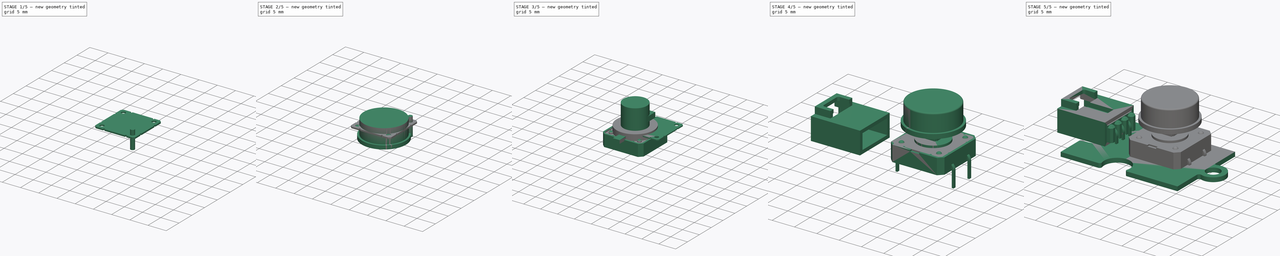
[diagram: build sequence overview — one tinted view per stage of 5, left to right]
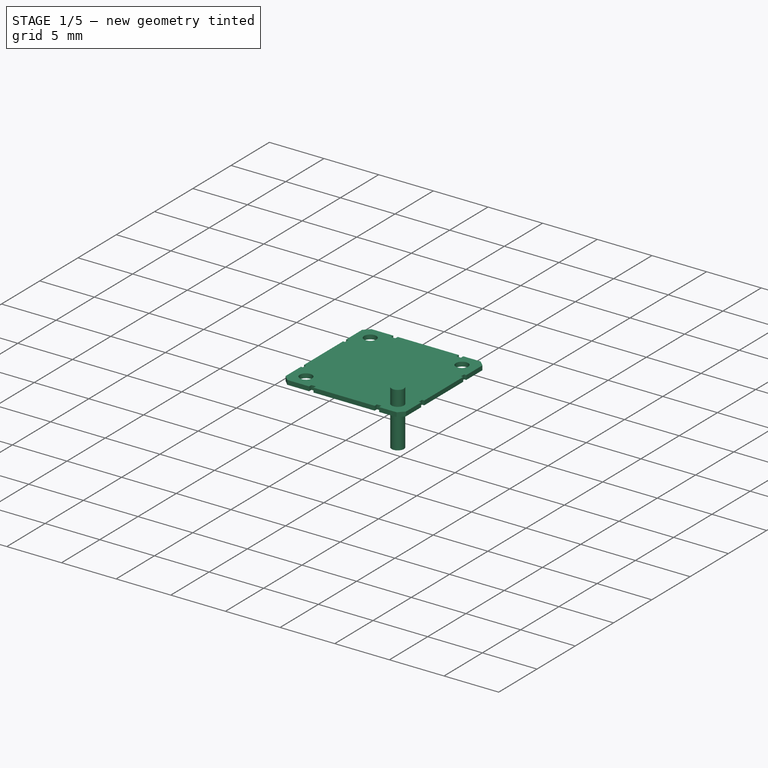
[diagram: stage 1 of 5 — iso view after this stage's code; geometry added in this stage tinted green]
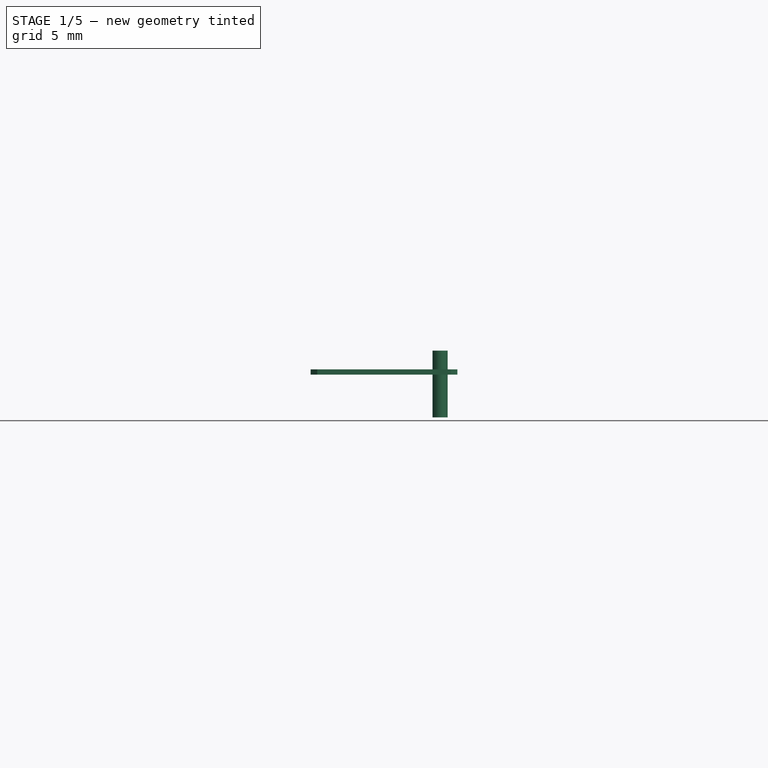
[diagram: stage 1 of 5 — front view after this stage's code; geometry added in this stage tinted green]
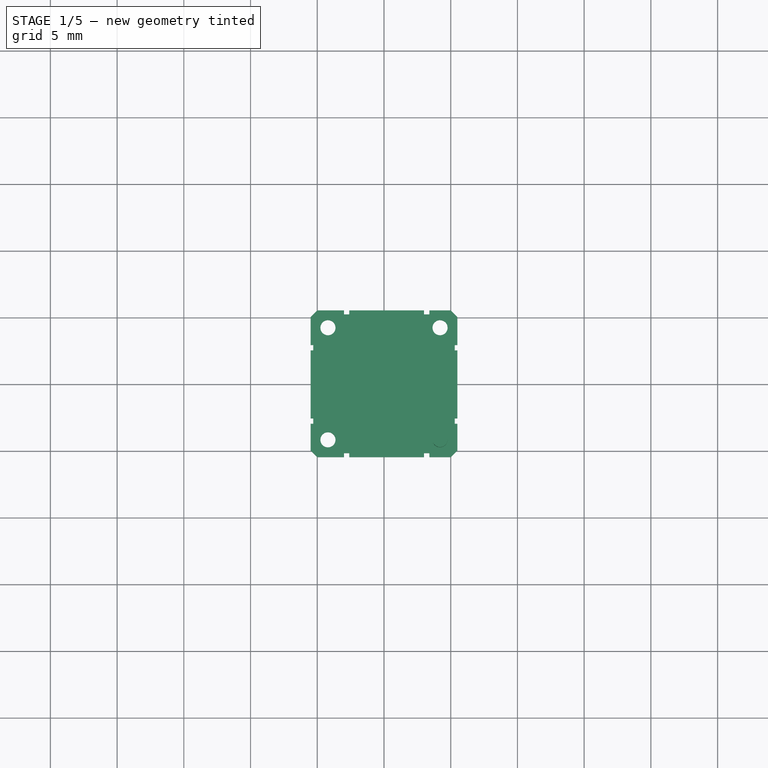
[diagram: stage 1 of 5 — top view after this stage's code; geometry added in this stage tinted green]
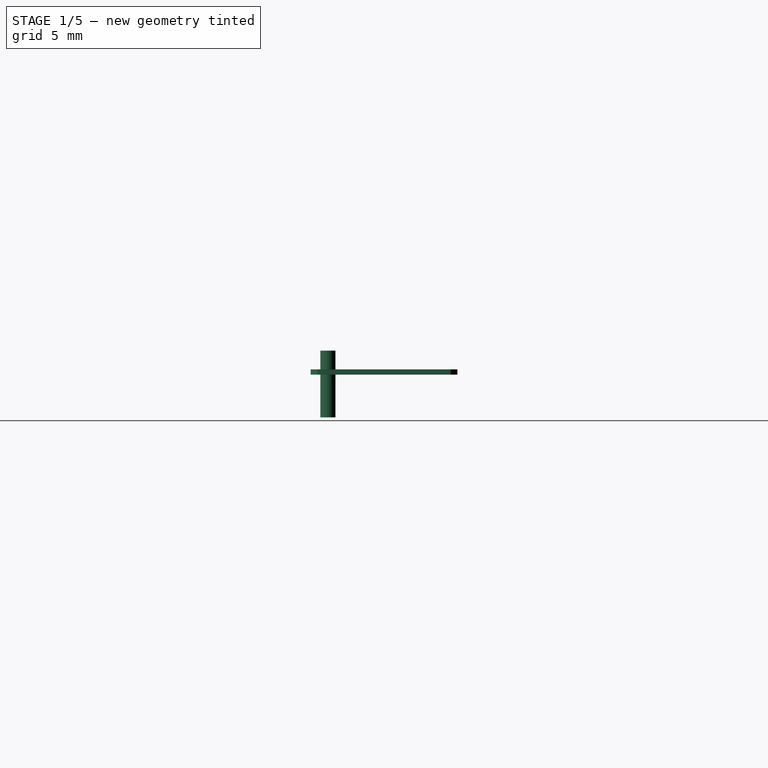
[diagram: stage 1 of 5 — right view after this stage's code; geometry added in this stage tinted green]
FCSTD DOCUMENT  (FreeCAD 0.14R3692 (Git))
Label: Optopus Pulsador
License: CC-BY 3.0
LicenseURL: http://creativecommons.org/licenses/by/3.0/
objects: Part::Cut×36, Part::Box×33, Part::Cylinder×18, Sketcher::SketchObject×12, Part::Fillet×8, Part::Chamfer×8, Part::MultiFuse×8, Part::Sweep×5, Part::Sphere×4, PartDesign::Pad×3, Part::FeaturePython×2, App::DocumentObjectGroup×2, Part::Thickness×1
note: 141 computed .brp shape members not serialized (recipe doc carries the construction recipe); baked Part::Feature solids carry a one-line shape summary decoded from their .brp

FEATURE [Part::Box] Box016  label="pestañaII"
  Height = 1
  Length = 0.4
  Placement = pos=(-3,-6.2,3) rot=(0,0,1;0rad)
  Width = 1
FEATURE [Part::Box] Box017  label="pestañaID"
  Height = 1
  Length = 0.4
  Placement = pos=(3,-6.2,3) rot=(0,0,1;0rad)
  Width = 1
FEATURE [Part::Box] Box018  label="pestañaIS"
  Height = 1
  Length = 0.4
  Placement = pos=(-5.3,2.5,3) rot=(0,0,1;1.5708rad)
  Width = 1
FEATURE [Part::Box] Box019  label="pestañaIInf"
  Height = 1
  Length = 0.4
  Placement = pos=(-5.3,-3,3) rot=(0,0,1;1.5708rad)
  Width = 1
FEATURE [Part::Cylinder] Cylinder005  label="Cilindro005"
  Angle = 360
  Height = 5
  Placement = pos=(4.2,-4.2,0) rot=(0,0,1;0rad)
  Radius = 0.565
FEATURE [Part::Cylinder] Cylinder006  label="Cilindro004"
  Angle = 360
  Height = 5
  Placement = pos=(-4.2,-4.2,0) rot=(0,0,1;0rad)
  Radius = 0.565
FEATURE [Part::Cylinder] Cylinder009  label="Cilindro002"
  Angle = 360
  Height = 5
  Placement = pos=(-4.2,4.2,0) rot=(0,0,1;0rad)
  Radius = 0.565
FEATURE [Part::Box] Box024  label="pestañaDInf"
  Height = 1
  Length = 0.4
  Placement = pos=(6.3,-3,3) rot=(0,0,1;1.5708rad)
  Width = 1
FEATURE [Part::Box] Box025  label="pestañaSI"
  Height = 1
  Length = 0.4
  Placement = pos=(-3,5.2,3) rot=(0,0,1;0rad)
  Width = 1
FEATURE [Part::Cylinder] Cylinder013  label="Cilindro003"
  Angle = 360
  Height = 5
  Placement = pos=(4.2,4.2,0) rot=(0,0,1;0rad)
  Radius = 0.565
FEATURE [Sketcher::SketchObject] Sketch011
  Placement = pos=(0.3,-2,0) rot=(0,0.707107,0.707107;3.14159rad)
  sketch-geometry (5):
    g0: LineSegment StartX=-1.9 StartY=4.62141 StartZ=0 EndX=-1.9 EndY=-1.87859 EndZ=0
    g1: LineSegment StartX=-1.9 StartY=-1.87859 StartZ=0 EndX=-1.1 EndY=-1.07859 EndZ=0
    g2: LineSegment StartX=-1.1 StartY=-1.07859 StartZ=0 EndX=-1.5 EndY=-1.07859 EndZ=0
    g3: LineSegment StartX=-1.5 StartY=-1.07859 StartZ=0 EndX=-1.5 EndY=4.62141 EndZ=0
    g4: LineSegment StartX=-1.5 StartY=4.62141 StartZ=0 EndX=-1.9 EndY=4.62141 EndZ=0
  constraints (15):
    c: Coincident(g0,g1)
    c: Coincident(g1,g2)
    c: Coincident(g2,g3)
    c: Coincident(g3,g4)
    c: Coincident(g4,g0)
    c: Vertical(g3)
    c: DistanceX(g0,g3) = 0.4
    c: Vertical(g0)
    c: Angle(g1,g0) = 0.785398
    c: DistanceY(g0) = -6.5
    c: Horizontal(g4)
    c: DistanceY(g3) = 5.7
    c: DistanceX(g-1,g3) = -1.5
    c: DistanceY(g-1,g3) = 4.62141
    c: Horizontal(g2)
FEATURE [Part::Box] Box028  label="pestañaSD"
  Height = 1
  Length = 0.4
  Placement = pos=(3,5.2,3) rot=(0,0,1;0rad)
  Width = 1
FEATURE [Part::Box] Box029  label="pestañaDS"
  Height = 1
  Length = 0.4
  Placement = pos=(6.3,2.5,3) rot=(0,0,1;1.5708rad)
  Width = 1
FEATURE [Part::Box] Box031  label="Cubo018"
  Height = 0.4
  Length = 11
  Placement = pos=(-5.5,-5.5,3.6) rot=(0,0,1;0rad)
  Width = 11
FEATURE [Part::Chamfer] Chamfer006
  Base = -> Box031
  Edges = 4 edges r=0.5: [Edge1,Edge3,Edge5,Edge7]
  Placement = pos=(0,0,-0.4) rot=(0,0,1;0rad)
FEATURE [Part::Cut] Cut018
  Base = -> Chamfer006
  Tool = -> Box025
FEATURE [Part::Cut] Cut033
  Base = -> Cut018
  Tool = -> Box028
FEATURE [Part::Cut] Cut022
  Base = -> Cut033
  Tool = -> Box016
FEATURE [Part::Cut] Cut029
  Base = -> Cut022
  Tool = -> Box017
FEATURE [Part::Cut] Cut017
  Base = -> Cut029
  Tool = -> Box018
FEATURE [Part::Cut] Cut009
  Base = -> Cut017
  Tool = -> Box019
FEATURE [Part::Cut] Cut010
  Base = -> Cut009
  Tool = -> Box029
FEATURE [Part::Cut] Cut030
  Base = -> Cut010
  Tool = -> Box024
FEATURE [Part::Cut] Cut013
  Base = -> Cut030
  Tool = -> Cylinder009
FEATURE [Part::Cut] Cut012
  Base = -> Cut013
  Tool = -> Cylinder013
FEATURE [Part::Cut] Cut015
  Base = -> Cut012
  Tool = -> Cylinder006
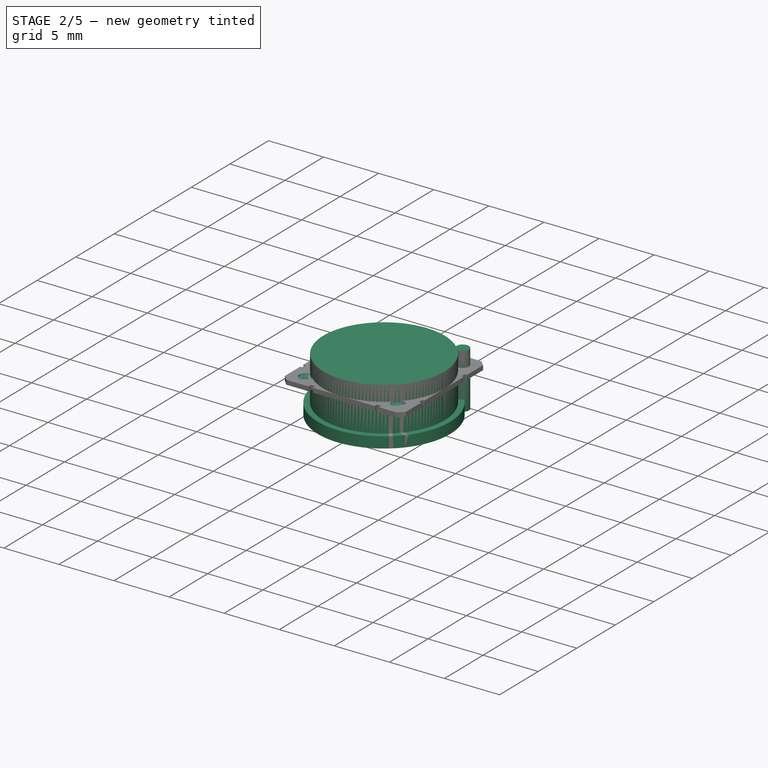
[diagram: stage 2 of 5 — iso view after this stage's code; geometry added in this stage tinted green]
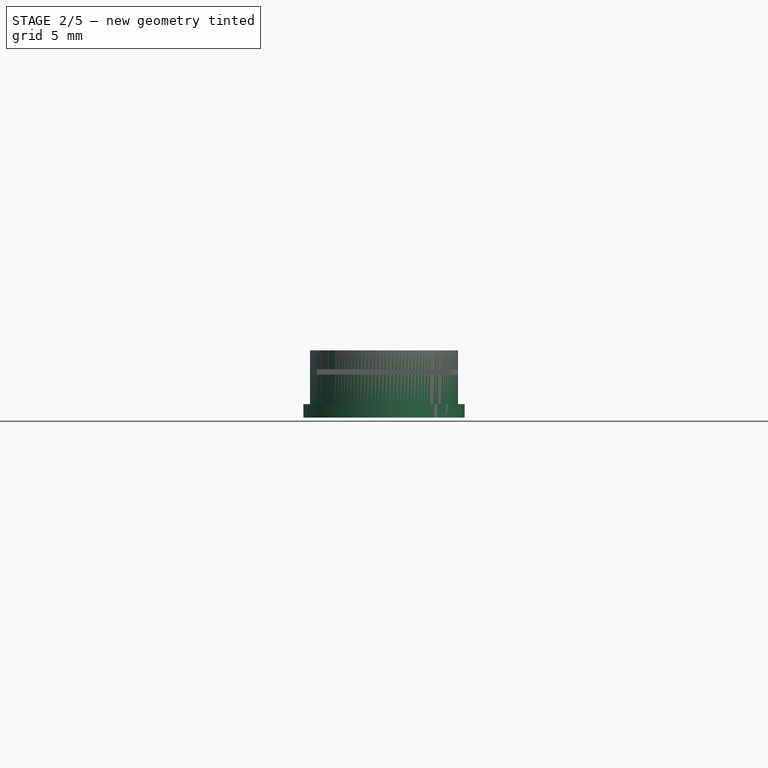
[diagram: stage 2 of 5 — front view after this stage's code; geometry added in this stage tinted green]
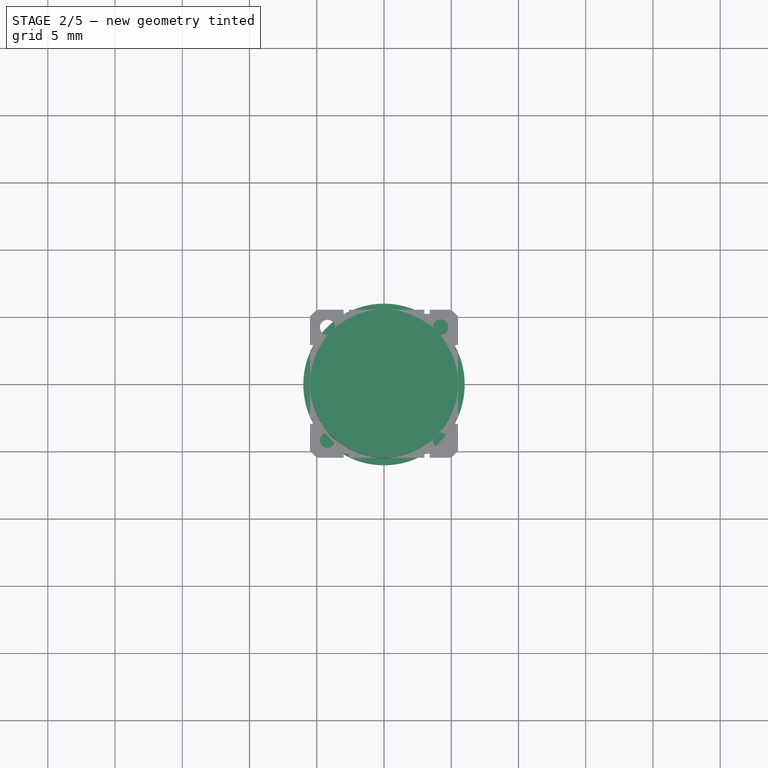
[diagram: stage 2 of 5 — top view after this stage's code; geometry added in this stage tinted green]
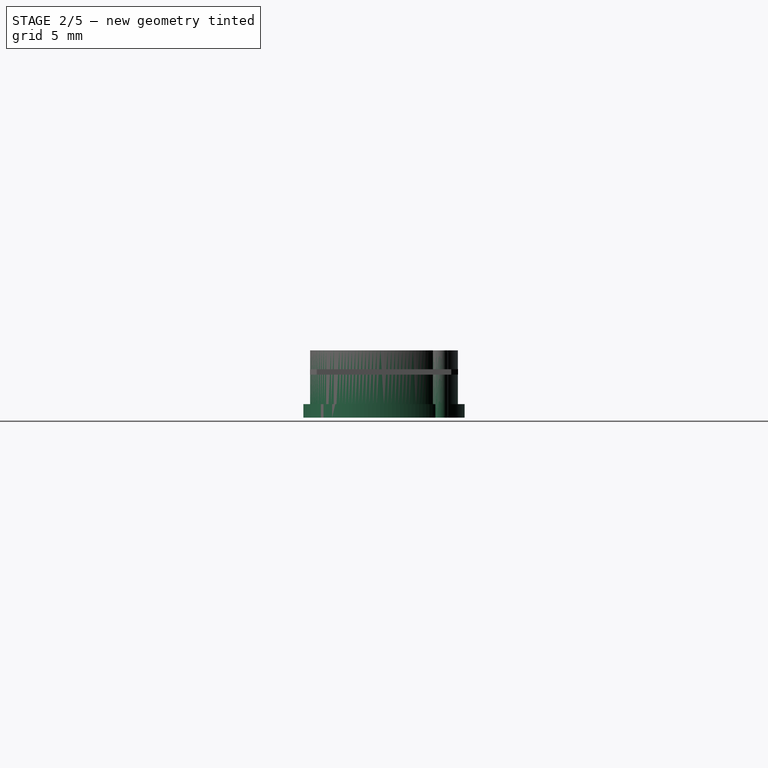
[diagram: stage 2 of 5 — right view after this stage's code; geometry added in this stage tinted green]
FEATURE [Sketcher::SketchObject] Sketch004
  Placement = pos=(0,0,0) rot=(0.57735,0.57735,0.57735;2.0944rad)
  sketch-geometry (3):
    g0: LineSegment StartX=0 StartY=0 StartZ=0 EndX=0 EndY=3.48702 EndZ=0
    g1: LineSegment StartX=-1.51298 StartY=5 StartZ=0 EndX=-2 EndY=5 EndZ=0
    g2: ArcOfCircle CenterX=-1.51298 CenterY=3.48702 CenterZ=0 NormalX=0 NormalY=0 NormalZ=1 Radius=1.51298 StartAngle=0 EndAngle=1.5708
  constraints (8):
    c: Coincident(g0,g-1)
    c: Vertical(g0)
    c: Horizontal(g1)
    c: Tangent(g1,g2)
    c: Tangent(g0,g2)
    c: DistanceY(g-1,g1) = 5
    c: DistanceX(g-1,g1) = -2
    c: Radius(g2) = 1.51298
FEATURE [Sketcher::SketchObject] Sketch005
  Placement = pos=(0,0,0) rot=(0.57735,0.57735,0.57735;2.0944rad)
  sketch-geometry (3):
    g0: LineSegment StartX=0 StartY=0 StartZ=0 EndX=0 EndY=3.48702 EndZ=0
    g1: LineSegment StartX=-1.51298 StartY=5 StartZ=0 EndX=-2 EndY=5 EndZ=0
    g2: ArcOfCircle CenterX=-1.51298 CenterY=3.48702 CenterZ=0 NormalX=0 NormalY=0 NormalZ=1 Radius=1.51298 StartAngle=0 EndAngle=1.5708
  constraints (8):
    c: Coincident(g0,g-1)
    c: Vertical(g0)
    c: Horizontal(g1)
    c: Tangent(g1,g2)
    c: Tangent(g0,g2)
    c: DistanceY(g-1,g1) = 5
    c: DistanceX(g-1,g1) = -2
    c: Radius(g2) = 1.51298
FEATURE [Sketcher::SketchObject] Sketch006
  Placement = pos=(0,0,0) rot=(0.57735,0.57735,0.57735;2.0944rad)
  sketch-geometry (3):
    g0: LineSegment StartX=0 StartY=0 StartZ=0 EndX=0 EndY=3.48702 EndZ=0
    g1: LineSegment StartX=-1.51298 StartY=5 StartZ=0 EndX=-2 EndY=5 EndZ=0
    g2: ArcOfCircle CenterX=-1.51298 CenterY=3.48702 CenterZ=0 NormalX=0 NormalY=0 NormalZ=1 Radius=1.51298 StartAngle=0 EndAngle=1.5708
  constraints (8):
    c: Coincident(g0,g-1)
    c: Vertical(g0)
    c: Horizontal(g1)
    c: Tangent(g1,g2)
    c: Tangent(g0,g2)
    c: DistanceY(g-1,g1) = 5
    c: DistanceX(g-1,g1) = -2
    c: Radius(g2) = 1.51298
FEATURE [Part::Box] Box008  label="pestañaSD001"
  Height = 1
  Length = 0.4
  Placement = pos=(3,5.2,3) rot=(0,0,1;0rad)
  Width = 1
FEATURE [Part::Box] Box009  label="pestañaIInf001"
  Height = 1
  Length = 0.4
  Placement = pos=(-5.3,-3,3) rot=(0,0,1;1.5708rad)
  Width = 1
FEATURE [Part::Box] Box010  label="pestañaII001"
  Height = 1
  Length = 0.4
  Placement = pos=(-3,-6.2,3) rot=(0,0,1;0rad)
  Width = 1
FEATURE [Part::Box] Box011  label="pestañaDInf001"
  Height = 1
  Length = 0.4
  Placement = pos=(6.3,-3,3) rot=(0,0,1;1.5708rad)
  Width = 1
FEATURE [Part::Box] Box012  label="pestañaID001"
  Height = 1
  Length = 0.4
  Placement = pos=(3,-6.2,3) rot=(0,0,1;0rad)
  Width = 1
FEATURE [Sketcher::SketchObject] Sketch007
  Placement = pos=(0,2,0) rot=(1,0,0;1.5708rad)
  sketch-geometry (5):
    g0: LineSegment StartX=-2.2 StartY=4.62141 StartZ=0 EndX=-2.2 EndY=-1.87859 EndZ=0
    g1: LineSegment StartX=-2.2 StartY=-1.87859 StartZ=0 EndX=-1.4 EndY=-1.07859 EndZ=0
    g2: LineSegment StartX=-1.4 StartY=-1.07859 StartZ=0 EndX=-1.8 EndY=-1.07859 EndZ=0
    g3: LineSegment StartX=-1.8 StartY=-1.07859 StartZ=0 EndX=-1.8 EndY=4.62141 EndZ=0
    g4: LineSegment StartX=-1.8 StartY=4.62141 StartZ=0 EndX=-2.2 EndY=4.62141 EndZ=0
  constraints (15):
    c: Coincident(g0,g1)
    c: Coincident(g1,g2)
    c: Coincident(g2,g3)
    c: Coincident(g3,g4)
    c: Coincident(g4,g0)
    c: Vertical(g3)
    c: DistanceX(g0,g3) = 0.4
    c: Vertical(g0)
    c: Angle(g1,g0) = 0.785398
    c: DistanceY(g0) = -6.5
    c: Horizontal(g4)
    c: DistanceY(g3) = 5.7
    c: DistanceX(g-1,g3) = -1.8
    c: DistanceY(g-1,g3) = 4.62141
    c: Horizontal(g2)
FEATURE [Part::Box] Box015  label="pestañaDS001"
  Height = 1
  Length = 0.4
  Placement = pos=(6.3,2.5,3) rot=(0,0,1;1.5708rad)
  Width = 1
FEATURE [Part::Cylinder] Cylinder002  label="Cilindro017"
  Angle = 360
  Height = 1
  Radius = 6
FEATURE [Part::Box] Box021  label="Cubo003"
  Height = 0.3
  Length = 11
  Placement = pos=(-5.5,-5.5,3.6) rot=(0,0,1;0rad)
  Width = 11
FEATURE [Part::Chamfer] Chamfer005
  Base = -> Box021
  Edges = 4 edges r=0.5: [Edge1,Edge3,Edge5,Edge7]
  Placement = pos=(0,0,-0.4) rot=(0,0,1;0rad)
FEATURE [Part::Cylinder] Cylinder010  label="Cilindro016"
  Angle = 360
  Height = 4
  Placement = pos=(0,0,1) rot=(0,0,1;0rad)
  Radius = 5.5
FEATURE [Part::Cylinder] Cylinder011  label="Cilindro007"
  Angle = 360
  Height = 5
  Placement = pos=(-4.2,4.2,0) rot=(0,0,1;0rad)
  Radius = 0.565
FEATURE [Part::Cylinder] Cylinder012  label="Cilindro006"
  Angle = 360
  Height = 5
  Placement = pos=(4.2,4.2,0) rot=(0,0,1;0rad)
  Radius = 0.565
FEATURE [Part::Box] Box026  label="pestañaSI001"
  Height = 1
  Length = 0.4
  Placement = pos=(-3,5.2,3) rot=(0,0,1;0rad)
  Width = 1
FEATURE [Part::Cut] Cut006
  Base = -> Chamfer005
  Tool = -> Box026
FEATURE [Part::Cut] Cut023
  Base = -> Cut006
  Tool = -> Box008
FEATURE [Part::Cut] Cut027
  Base = -> Cut023
  Tool = -> Box010
FEATURE [Part::Cut] Cut024
  Base = -> Cut027
  Tool = -> Box012
FEATURE [Part::Box] Box030  label="pestañaIS001"
  Height = 1
  Length = 0.4
  Placement = pos=(-5.3,2.5,3) rot=(0,0,1;1.5708rad)
  Width = 1
FEATURE [Part::Cut] Cut020
  Base = -> Cut024
  Tool = -> Box030
FEATURE [Part::Cut] Cut032
  Base = -> Cut020
  Tool = -> Box009
FEATURE [Part::Cut] Cut019
  Base = -> Cut032
  Tool = -> Box015
FEATURE [Part::Cut] Cut031
  Base = -> Cut019
  Tool = -> Box011
FEATURE [Part::Cut] Cut016
  Base = -> Cut031
  Tool = -> Cylinder011
FEATURE [Part::MultiFuse] Fusion007
  Shapes = -> [Cylinder010,Cylinder002]
FEATURE [Part::Cut] Cut035  label="ChapaDiferencia"
  Base = -> Cut015
  Tool = -> Cylinder005
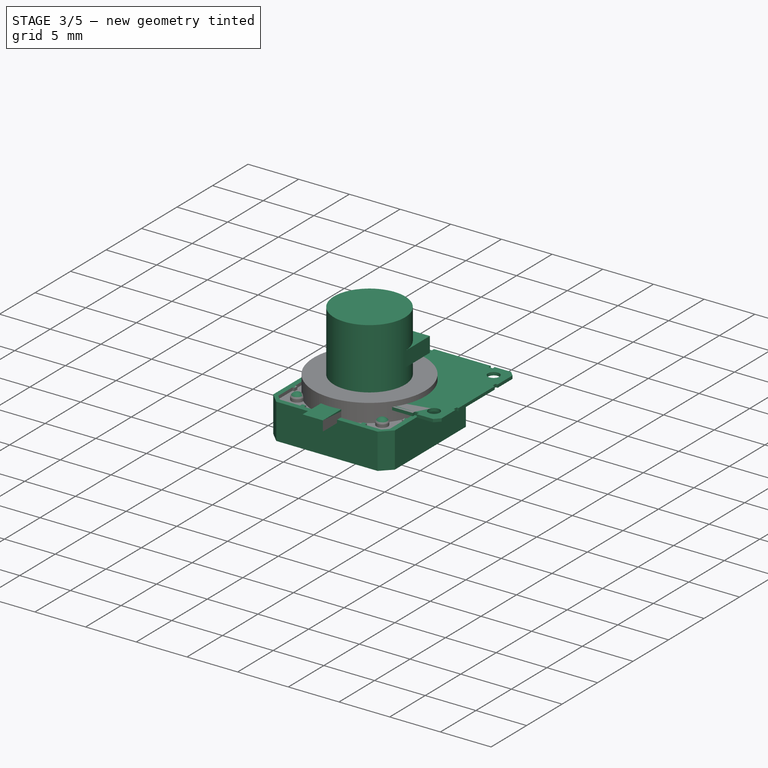
[diagram: stage 3 of 5 — iso view after this stage's code; geometry added in this stage tinted green]
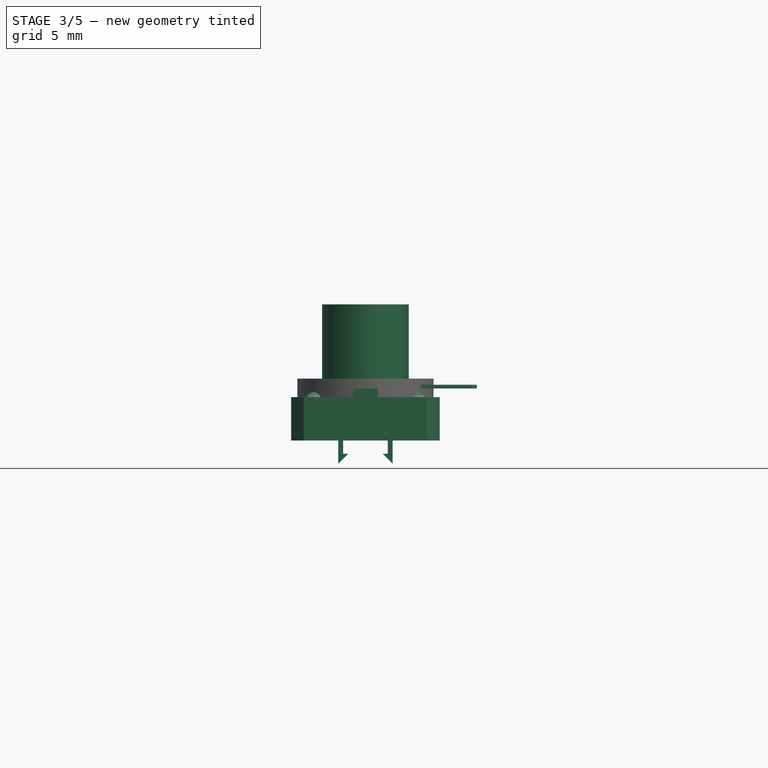
[diagram: stage 3 of 5 — front view after this stage's code; geometry added in this stage tinted green]
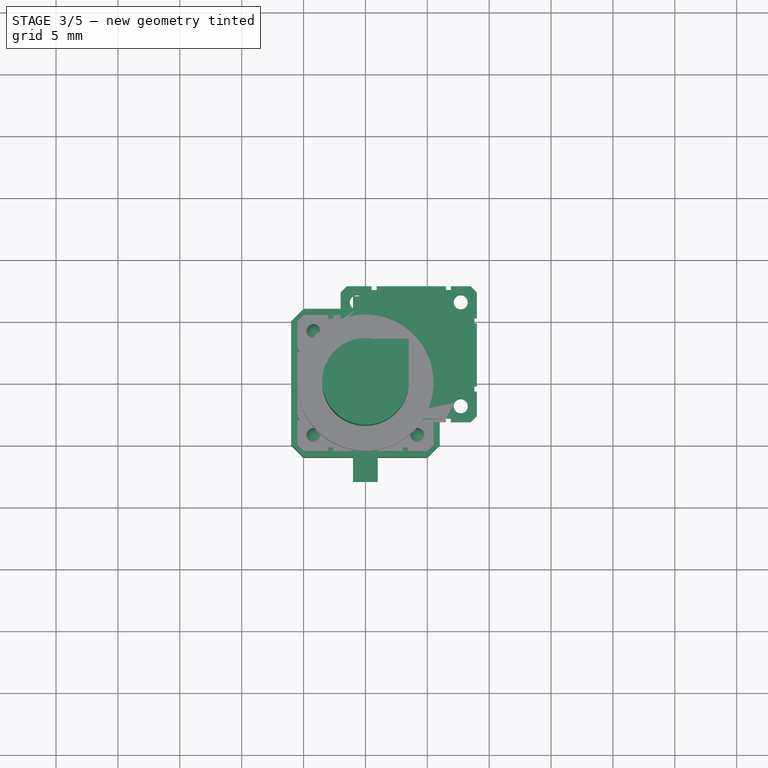
[diagram: stage 3 of 5 — top view after this stage's code; geometry added in this stage tinted green]
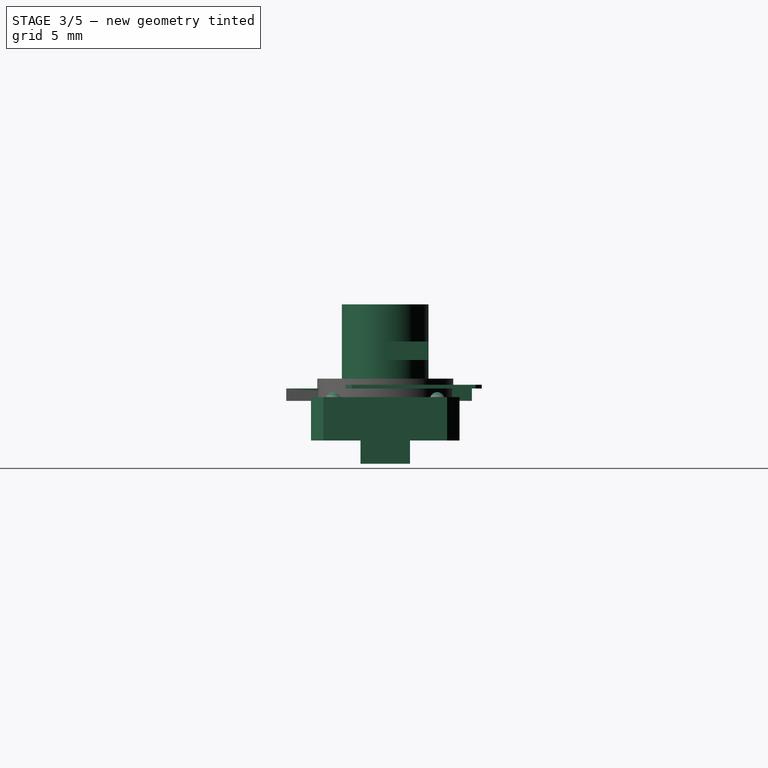
[diagram: stage 3 of 5 — right view after this stage's code; geometry added in this stage tinted green]
FEATURE [Part::Cylinder] Cylinder  label="Cilindro010"
  Angle = 360
  Height = 0.2
  Radius = 0.6
FEATURE [Part::Sphere] Sphere  label="Esféra003"
  Angle1 = -90
  Angle2 = 90
  Angle3 = 180
  Placement = pos=(0,0,0) rot=(1,0,0;1.5708rad)
  Radius = 0.6
FEATURE [Part::Cylinder] Cylinder007  label="Cilindro011"
  Angle = 360
  Height = 0.2
  Radius = 0.6
FEATURE [Part::Cylinder] Cylinder008  label="Cilindro009"
  Angle = 360
  Height = 5
  Placement = pos=(4.2,-4.2,0) rot=(0,0,1;0rad)
  Radius = 0.565
FEATURE [Part::Box] Box023  label="Cubo017"
  Height = 1
  Length = 2
  Placement = pos=(-1,-8,3.2) rot=(0,0,1;0rad)
  Width = 15
FEATURE [Part::Cylinder] Cylinder014  label="Cilindro008"
  Angle = 360
  Height = 5
  Placement = pos=(-4.2,-4.2,0) rot=(0,0,1;0rad)
  Radius = 0.565
FEATURE [Part::Sphere] Sphere001  label="Esféra002"
  Angle1 = -90
  Angle2 = 90
  Angle3 = 180
  Placement = pos=(0,0,0) rot=(1,0,0;1.5708rad)
  Radius = 0.6
FEATURE [Part::Cut] Cut021  label="esfera001"
  Base = -> Sphere001
  Placement = pos=(4.2,4.2,3.3) rot=(0,0,1;0rad)
  Tool = -> Cylinder007
FEATURE [Part::Box] Box027  label="Cubo"
  Height = 3.5
  Length = 12
  Width = 12
FEATURE [Part::Chamfer] Chamfer007
  Base = -> Box027
  Edges = 4 edges r=1: [Edge1,Edge3,Edge5,Edge7]
  Placement = pos=(-6,-6,0) rot=(0,0,1;0rad)
FEATURE [Part::Cylinder] Cylinder015  label="Cilindro012"
  Angle = 360
  Height = 0.2
  Radius = 0.6
FEATURE [Part::Cut] Cut005  label="esfera002"
  Base = -> Sphere
  Placement = pos=(4.2,-4.2,3.3) rot=(0,0,1;0rad)
  Tool = -> Cylinder015
FEATURE [Part::Cylinder] Cylinder016  label="Cilindro013"
  Angle = 360
  Height = 0.2
  Radius = 0.6
FEATURE [PartDesign::Pad] Pad001
  Length = 4
  Length2 = 100
  Placement = pos=(0,2,0) rot=(1,0,0;1.5708rad)
  Sketch = -> Sketch007
  Type = 0
FEATURE [Part::Sphere] Sphere002  label="Esféra001"
  Angle1 = -90
  Angle2 = 90
  Angle3 = 180
  Placement = pos=(0,0,0) rot=(1,0,0;1.5708rad)
  Radius = 0.6
FEATURE [Part::Cut] Cut011  label="esfera"
  Base = -> Sphere002
  Placement = pos=(-4.2,4.2,3.3) rot=(0,0,1;0rad)
  Tool = -> Cylinder
FEATURE [PartDesign::Pad] Pad002
  Length = 4
  Length2 = 100
  Placement = pos=(0.3,-2,0) rot=(0,0.707107,0.707107;3.14159rad)
  Sketch = -> Sketch011
  Type = 0
FEATURE [Part::Sphere] Sphere003  label="Esféra004"
  Angle1 = -90
  Angle2 = 90
  Angle3 = 180
  Placement = pos=(0,0,0) rot=(1,0,0;1.5708rad)
  Radius = 0.6
FEATURE [Part::Cut] Cut004  label="esfera003"
  Base = -> Sphere003
  Placement = pos=(-4.2,-4.2,3.3) rot=(0,0,1;0rad)
  Tool = -> Cylinder016
FEATURE [Part::Box] Box032  label="Cubo019"
  Height = 1.5
  Length = 3.5
  Placement = pos=(0,0,6.5) rot=(0,0,1;0rad)
  Width = 3.5
FEATURE [Part::Cylinder] Cylinder017  label="Cilindro014"
  Angle = 360
  Height = 10
  Placement = pos=(0,0,1) rot=(0,0,1;0rad)
  Radius = 3.5
FEATURE [Part::Cut] Cut034
  Base = -> Cut016
  Tool = -> Cylinder012
FEATURE [Part::Cut] Cut025
  Base = -> Cut034
  Tool = -> Cylinder014
FEATURE [Part::Cut] Cut028  label="ChapaMetalica"
  Base = -> Cut025
  Placement = pos=(3.5,2.3,1) rot=(0,0,1;0rad)
  Tool = -> Cylinder008
FEATURE [Part::Cut] Cut014
  Base = -> Chamfer007
  Tool = -> Cut035
FEATURE [Part::MultiFuse] Fusion006
  Shapes = -> [Cut014,Cut011,Cut004,Cut005,Cut021]
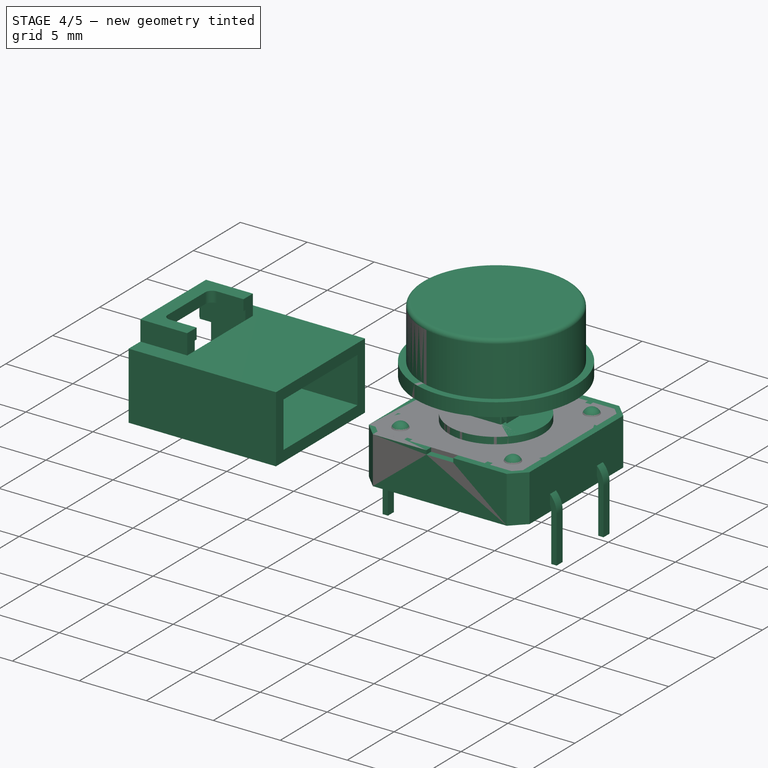
[diagram: stage 4 of 5 — iso view after this stage's code; geometry added in this stage tinted green]
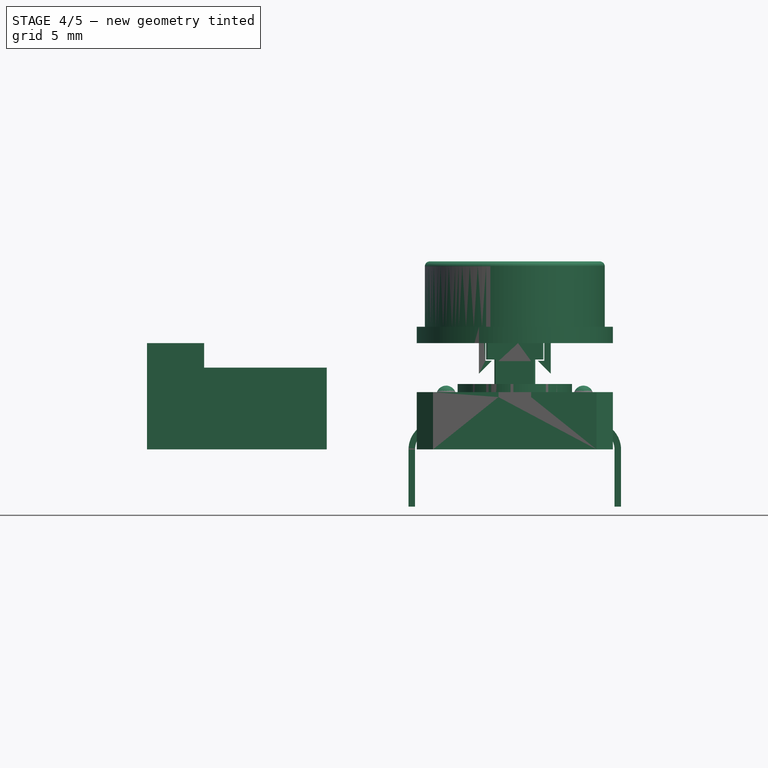
[diagram: stage 4 of 5 — front view after this stage's code; geometry added in this stage tinted green]
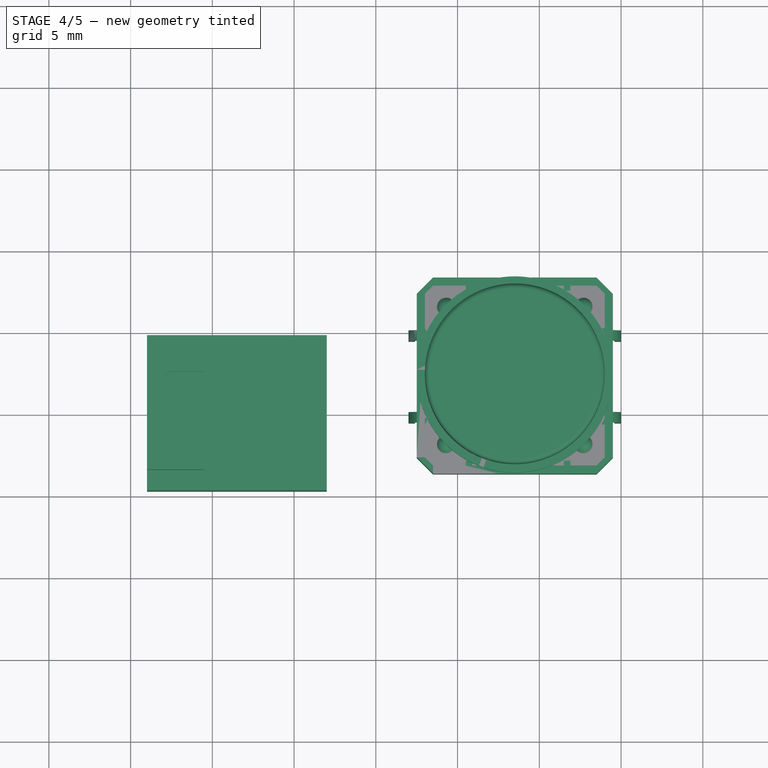
[diagram: stage 4 of 5 — top view after this stage's code; geometry added in this stage tinted green]
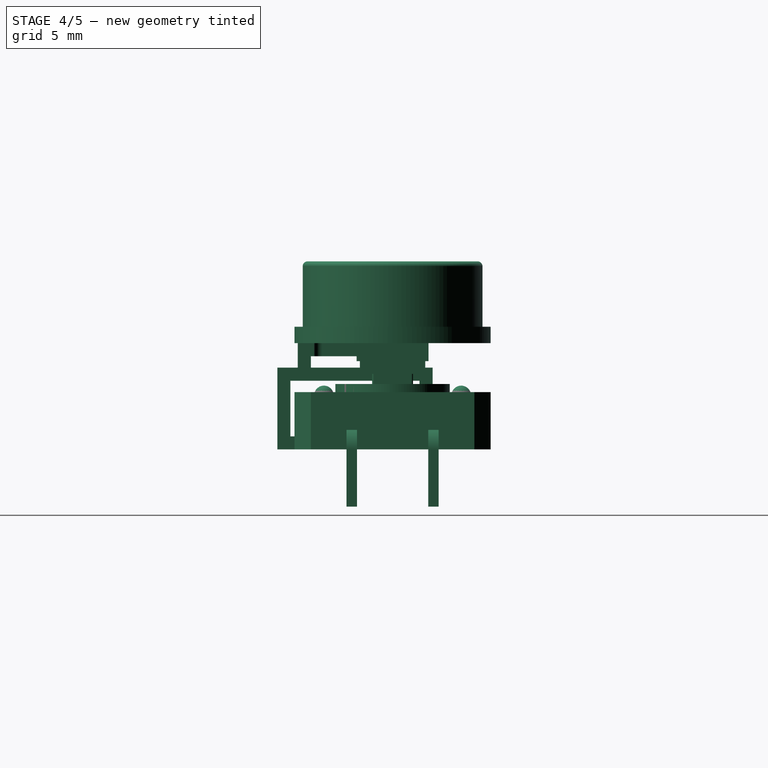
[diagram: stage 4 of 5 — right view after this stage's code; geometry added in this stage tinted green]
FEATURE [Part::Box] Box005  label="Cubo001"
  Height = 5
  Length = 7.5
  Width = 9.5
FEATURE [Part::Thickness] Thickness
  Faces = -> Box005 [Face2,Face1]
  Intersection = false
  Join = 2
  Mode = 1
  Placement = pos=(-15.5,-4.75,1) rot=(0,0,1;0rad)
  SelfIntersection = false
  Value = -0.8
FEATURE [Part::Cut] Cut002
FEATURE [Part::Chamfer] Chamfer004
  Base = -> Cut002
  Edges = 8 edges r=0.1: [Edge16,Edge17,Edge18,Edge19,Edge20,Edge21,Edge22,Edge23]
FEATURE [App::DocumentObjectGroup] Grupo  label="GR_BaseOptopus"
  Group = -> [Fillet004,Fusion,Sketch,Cut]
FEATURE [Sketcher::SketchObject] Sketch002
  Placement = pos=(0,0,0) rot=(0.57735,0.57735,0.57735;2.0944rad)
  sketch-geometry (3):
    g0: LineSegment StartX=0 StartY=0 StartZ=0 EndX=0 EndY=3.48702 EndZ=0
    g1: LineSegment StartX=-1.51298 StartY=5 StartZ=0 EndX=-2 EndY=5 EndZ=0
    g2: ArcOfCircle CenterX=-1.51298 CenterY=3.48702 CenterZ=0 NormalX=0 NormalY=0 NormalZ=1 Radius=1.51298 StartAngle=0 EndAngle=1.5708
  constraints (8):
    c: Coincident(g0,g-1)
    c: Vertical(g0)
    c: Horizontal(g1)
    c: Tangent(g1,g2)
    c: Tangent(g0,g2)
    c: DistanceY(g-1,g1) = 5
    c: DistanceX(g-1,g1) = -2
    c: Radius(g2) = 1.51298
FEATURE [Sketcher::SketchObject] Sketch003
  sketch-geometry (4):
    g0: LineSegment StartX=-0.32 StartY=0.2 StartZ=0 EndX=0.32 EndY=0.2 EndZ=0
    g1: LineSegment StartX=0.32 StartY=0.2 StartZ=0 EndX=0.32 EndY=-0.2 EndZ=0
    g2: LineSegment StartX=0.32 StartY=-0.2 StartZ=0 EndX=-0.32 EndY=-0.2 EndZ=0
    g3: LineSegment StartX=-0.32 StartY=-0.2 StartZ=0 EndX=-0.32 EndY=0.2 EndZ=0
  constraints (12):
    c: Coincident(g0,g1)
    c: Coincident(g1,g2)
    c: Coincident(g2,g3)
    c: Coincident(g3,g0)
    c: Horizontal(g0)
    c: Horizontal(g2)
    c: Vertical(g1)
    c: Vertical(g3)
    c: Symmetric(g0,g0,g-2)
    c: Symmetric(g0,g2,g-1)
    c: DistanceX(g0) = 0.64
    c: DistanceY(g3) = 0.4
FEATURE [Part::Sweep] Sweep001
  Frenet = false
  Placement = pos=(6.3,-2.5,-3.5) rot=(0,0,-1;1.5708rad)
  Sections = -> [Sketch003]
  Solid = true
  Spine = -> Sketch002 [Edge1,Edge2,Edge3]
  Transition = 1
FEATURE [Part::Cylinder] Cylinder001  label="Cilindro018"
  Angle = 360
  Height = 5
  Placement = pos=(0,0,-0.5) rot=(0,0,1;0rad)
  Radius = 5
FEATURE [Part::Box] Box013  label="Cubo014"
  Height = 5.7
  Length = 2
  Placement = pos=(-1,-2.2,-1.1) rot=(0,0,1;0rad)
  Width = 0.4
FEATURE [Part::Box] Box014  label="Cubo009"
  Height = 4.7
  Length = 3
  Placement = pos=(2.1,-0.2,0) rot=(0,0,1;0rad)
  Width = 0.4
FEATURE [Part::FeaturePython] Array001  # Draft array (typed FeaturePython)
  Angle = 360
  ArrayType = 1
  Axis = (0,0,1)
  Base = -> Box014
  Center = (0,0,0)
  IntervalX = (1,0,0)
  IntervalY = (0,1,0)
  IntervalZ = (0,0,1)
  NumberPolar = 4
  NumberX = 2
  NumberY = 2
  NumberZ = 1
FEATURE [Sketcher::SketchObject] Sketch008
  sketch-geometry (4):
    g0: LineSegment StartX=-0.32 StartY=0.2 StartZ=0 EndX=0.32 EndY=0.2 EndZ=0
    g1: LineSegment StartX=0.32 StartY=0.2 StartZ=0 EndX=0.32 EndY=-0.2 EndZ=0
    g2: LineSegment StartX=0.32 StartY=-0.2 StartZ=0 EndX=-0.32 EndY=-0.2 EndZ=0
    g3: LineSegment StartX=-0.32 StartY=-0.2 StartZ=0 EndX=-0.32 EndY=0.2 EndZ=0
  constraints (12):
    c: Coincident(g0,g1)
    c: Coincident(g1,g2)
    c: Coincident(g2,g3)
    c: Coincident(g3,g0)
    c: Horizontal(g0)
    c: Horizontal(g2)
    c: Vertical(g1)
    c: Vertical(g3)
    c: Symmetric(g0,g0,g-2)
    c: Symmetric(g0,g2,g-1)
    c: DistanceX(g0) = 0.64
    c: DistanceY(g3) = 0.4
FEATURE [Part::Sweep] Sweep002
  Frenet = false
  Placement = pos=(6.3,2.5,-3.5) rot=(0,0,-1;1.5708rad)
  Sections = -> [Sketch008]
  Solid = true
  Spine = -> Sketch004 [Edge1,Edge2,Edge3]
  Transition = 1
FEATURE [Part::Cylinder] Cylinder003  label="Cilindro015"
  Angle = 360
  Height = 3
  Placement = pos=(0,0,6.5) rot=(0,0,1;0rad)
  Radius = 3.5
FEATURE [Sketcher::SketchObject] Sketch009
  sketch-geometry (4):
    g0: LineSegment StartX=-0.32 StartY=0.2 StartZ=0 EndX=0.32 EndY=0.2 EndZ=0
    g1: LineSegment StartX=0.32 StartY=0.2 StartZ=0 EndX=0.32 EndY=-0.2 EndZ=0
    g2: LineSegment StartX=0.32 StartY=-0.2 StartZ=0 EndX=-0.32 EndY=-0.2 EndZ=0
    g3: LineSegment StartX=-0.32 StartY=-0.2 StartZ=0 EndX=-0.32 EndY=0.2 EndZ=0
  constraints (12):
    c: Coincident(g0,g1)
    c: Coincident(g1,g2)
    c: Coincident(g2,g3)
    c: Coincident(g3,g0)
    c: Horizontal(g0)
    c: Horizontal(g2)
    c: Vertical(g1)
    c: Vertical(g3)
    c: Symmetric(g0,g0,g-2)
    c: Symmetric(g0,g2,g-1)
    c: DistanceX(g0) = 0.64
    c: DistanceY(g3) = 0.4
FEATURE [Part::Sweep] Sweep004
  Frenet = false
  Placement = pos=(-6.3,2.5,-3.5) rot=(0,0,1;1.5708rad)
  Sections = -> [Sketch009]
  Solid = true
  Spine = -> Sketch006 [Edge1,Edge2,Edge3]
  Transition = 1
FEATURE [Part::Cylinder] Cylinder004  label="Cilindro"
  Angle = 360
  Height = 10
  Placement = pos=(0,0,6.5) rot=(0,0,1;0rad)
  Radius = 1
FEATURE [Part::Box] Box020  label="Cubo015"
  Height = 1.5
  Length = 2.5
  Placement = pos=(0,0,6.5) rot=(0,0,1;0rad)
  Width = 2.5
FEATURE [Part::Box] Box022  label="Cubo016"
  Height = 5.7
  Length = 2
  Placement = pos=(-1,1.8,-1.1) rot=(0,0,1;0rad)
  Width = 0.4
FEATURE [Sketcher::SketchObject] Sketch010
  sketch-geometry (4):
    g0: LineSegment StartX=-0.32 StartY=0.2 StartZ=0 EndX=0.32 EndY=0.2 EndZ=0
    g1: LineSegment StartX=0.32 StartY=0.2 StartZ=0 EndX=0.32 EndY=-0.2 EndZ=0
    g2: LineSegment StartX=0.32 StartY=-0.2 StartZ=0 EndX=-0.32 EndY=-0.2 EndZ=0
    g3: LineSegment StartX=-0.32 StartY=-0.2 StartZ=0 EndX=-0.32 EndY=0.2 EndZ=0
  constraints (12):
    c: Coincident(g0,g1)
    c: Coincident(g1,g2)
    c: Coincident(g2,g3)
    c: Coincident(g3,g0)
    c: Horizontal(g0)
    c: Horizontal(g2)
    c: Vertical(g1)
    c: Vertical(g3)
    c: Symmetric(g0,g0,g-2)
    c: Symmetric(g0,g2,g-1)
    c: DistanceX(g0) = 0.64
    c: DistanceY(g3) = 0.4
FEATURE [Part::Sweep] Sweep003
  Frenet = false
  Placement = pos=(-6.3,-2.5,-3.5) rot=(0,0,1;1.5708rad)
  Sections = -> [Sketch010]
  Solid = true
  Spine = -> Sketch005 [Edge1,Edge2,Edge3]
  Transition = 1
FEATURE [Part::MultiFuse] Fusion005
  Placement = pos=(0,0,6.5) rot=(0,0,1;0rad)
  Shapes = -> [Cylinder003,Box020,Box032]
FEATURE [Part::Cut] Cut008  label="Eje"
  Base = -> Fusion005
  Placement = pos=(0,0,6.5) rot=(0,0,1;0rad)
  Tool = -> Cylinder004
FEATURE [Part::Fillet] Fillet007  label="Eje001"
  Base = -> Cut008
  Edges = 8 edges r=0.1: [Edge1,Edge3,Edge6,Edge12,Edge20,Edge22,Edge24,Edge26]
  Placement = pos=(3.5,2.3,7.5) rot=(0,0,1;0rad)
FEATURE [Part::Cut] Cut007
  Base = -> Fusion007
  Tool = -> Cylinder001
FEATURE [Part::Fillet] Fillet006
  Base = -> Cut007
  Edges = 1 edges r=0.3: [Edge1]
FEATURE [Part::MultiFuse] Fusion004  label="Tapon"
  Placement = pos=(3.5,2.3,7.5) rot=(0,0,1;0rad)
  Shapes = -> [Fillet006,Pad002,Box013,Pad001,Box022,Array001]
FEATURE [Part::Cut] Cut026  label="PreBasePuls"
  Base = -> Fusion006
  Tool = -> Box023
FEATURE [Part::Cut] Cut003
  Base = -> Cut026
  Tool = -> Cylinder017
FEATURE [Part::MultiFuse] Fusion003  label="BasePulsador"
  Placement = pos=(3.5,2.3,1) rot=(0,0,1;0rad)
  Shapes = -> [Sweep004,Sweep003,Sweep002,Sweep001,Cut003]
FEATURE [App::DocumentObjectGroup] Grupo001  label="GR_Pulsador"
  Group = -> [Fusion003,Sketch002,Sketch004,Sketch005,Sketch006,Fusion004,Fillet007,Cut028]
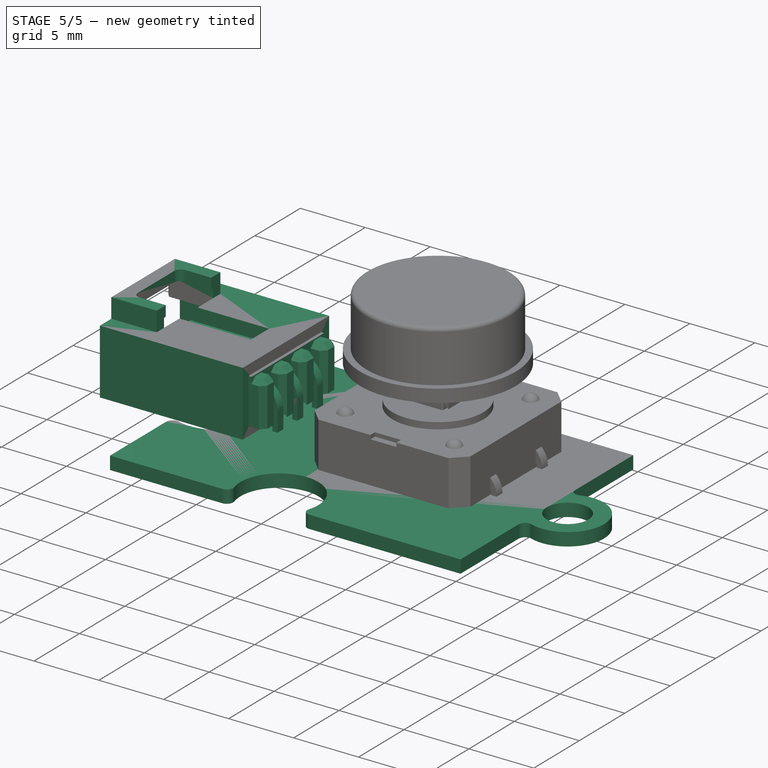
[diagram: stage 5 of 5 — iso view after this stage's code; geometry added in this stage tinted green]
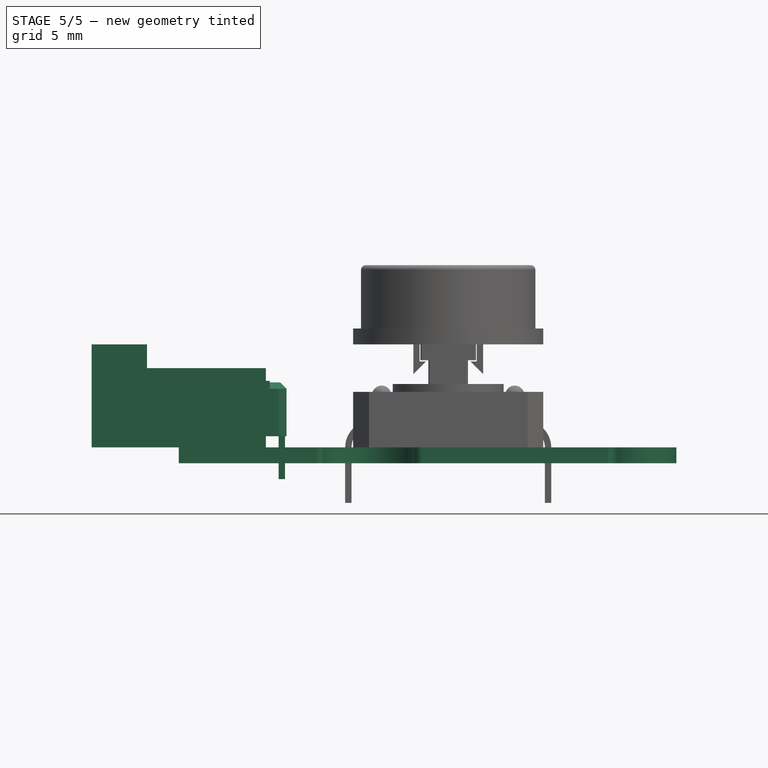
[diagram: stage 5 of 5 — front view after this stage's code; geometry added in this stage tinted green]
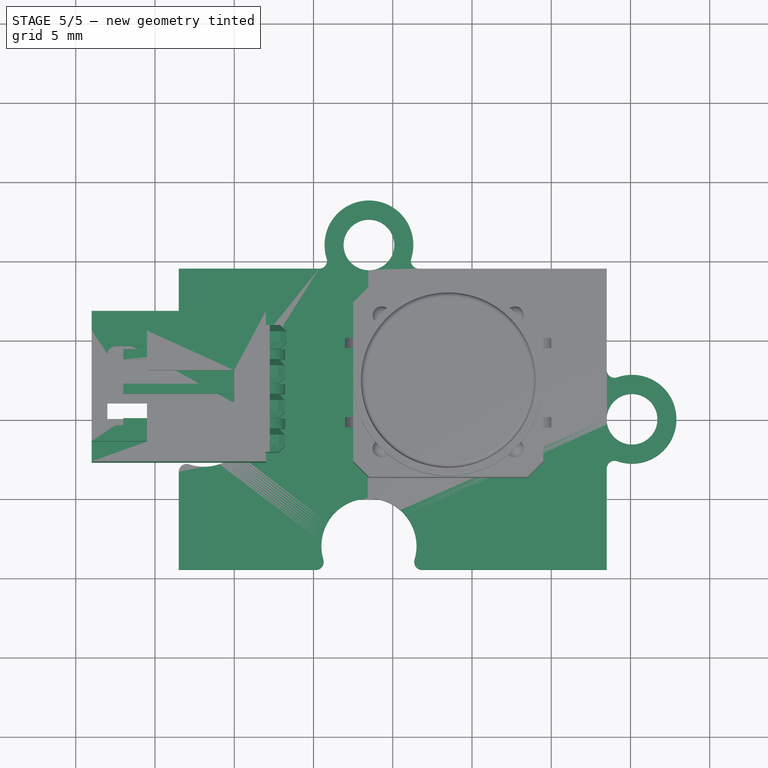
[diagram: stage 5 of 5 — top view after this stage's code; geometry added in this stage tinted green]
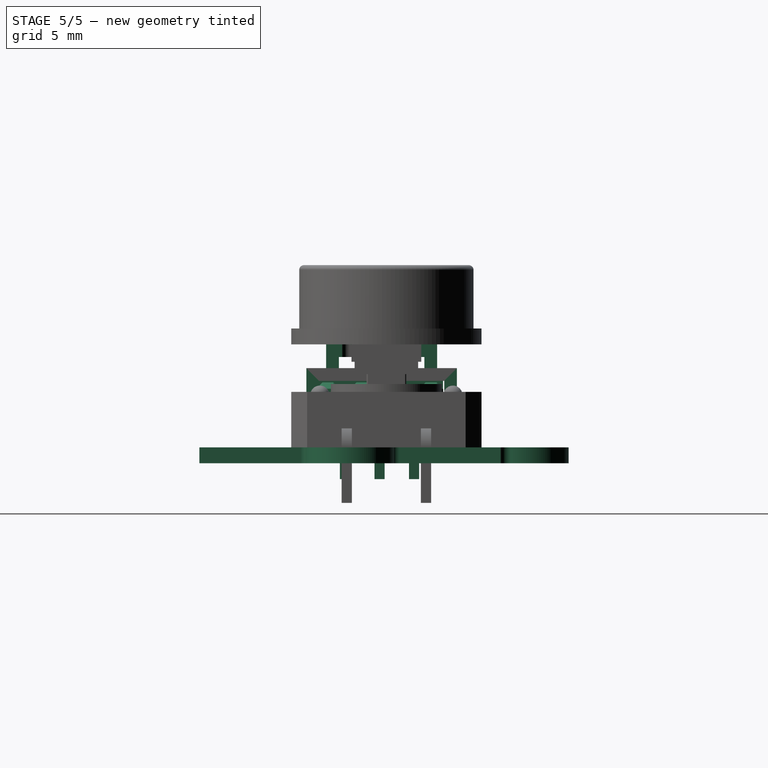
[diagram: stage 5 of 5 — right view after this stage's code; geometry added in this stage tinted green]
FEATURE [PartDesign::Pad] Pad  label="Octopus_Base"
  Length = 1
  Length2 = 100
  Type = 0
FEATURE [Part::Fillet] Fillet003
  Base = -> Pad
  Edges = 1 edges r=0.5: [Edge23]
FEATURE [Part::Fillet] Fillet002
  Base = -> Fillet003
  Edges = 1 edges r=0.5: [Edge35]
FEATURE [Part::Fillet] Fillet001
  Base = -> Fillet002
  Edges = 1 edges r=0.5: [Edge28]
FEATURE [Part::Fillet] Fillet
  Base = -> Fillet001
  Edges = 1 edges r=0.5: [Edge25]
FEATURE [Part::Fillet] Fillet005
  Base = -> Fillet
  Edges = 1 edges r=0.5: [Edge34]
FEATURE [Part::Fillet] Fillet004  label="PCB_Base"
  Base = -> Fillet005
  Edges = 3 edges r=0.5: [Edge21,Edge31,Edge35]
FEATURE [Sketcher::SketchObject] Sketch
  Placement = pos=(0,0,0) rot=(0.57735,0.57735,0.57735;2.0944rad)
  sketch-geometry (3):
    g0: LineSegment StartX=0 StartY=0 StartZ=0 EndX=0 EndY=3.48702 EndZ=0
    g1: LineSegment StartX=-1.51298 StartY=5 StartZ=0 EndX=-10 EndY=5 EndZ=0
    g2: ArcOfCircle CenterX=-1.51298 CenterY=3.48702 CenterZ=0 NormalX=0 NormalY=0 NormalZ=1 Radius=1.51298 StartAngle=0 EndAngle=1.5708
  constraints (8):
    c: Coincident(g0,g-1)
    c: Vertical(g0)
    c: Horizontal(g1)
    c: Tangent(g1,g2)
    c: Tangent(g0,g2)
    c: DistanceY(g-1,g1) = 5
    c: DistanceX(g-1,g1) = -10
    c: Radius(g2) = 1.51298
FEATURE [Sketcher::SketchObject] Sketch001
  sketch-geometry (4):
    g0: LineSegment StartX=-0.32 StartY=0.2 StartZ=0 EndX=0.32 EndY=0.2 EndZ=0
    g1: LineSegment StartX=0.32 StartY=0.2 StartZ=0 EndX=0.32 EndY=-0.2 EndZ=0
    g2: LineSegment StartX=0.32 StartY=-0.2 StartZ=0 EndX=-0.32 EndY=-0.2 EndZ=0
    g3: LineSegment StartX=-0.32 StartY=-0.2 StartZ=0 EndX=-0.32 EndY=0.2 EndZ=0
  constraints (12):
    c: Coincident(g0,g1)
    c: Coincident(g1,g2)
    c: Coincident(g2,g3)
    c: Coincident(g3,g0)
    c: Horizontal(g0)
    c: Horizontal(g2)
    c: Vertical(g1)
    c: Vertical(g3)
    c: Symmetric(g0,g0,g-2)
    c: Symmetric(g0,g2,g-1)
    c: DistanceX(g0) = 0.64
    c: DistanceY(g3) = 0.4
FEATURE [Part::Sweep] Sweep
  Frenet = false
  Placement = pos=(-0.05,0,-1) rot=(0,0,1;0rad)
  Sections = -> [Sketch001]
  Solid = true
  Spine = -> Sketch [Edge1,Edge2,Edge3]
  Transition = 1
FEATURE [Part::Box] Box  label="Cubo005"
  Height = 3.4
  Length = 1.54
  Placement = pos=(-2.93,-3.3,0.2) rot=(0,0,1;0rad)
  Width = 2
FEATURE [Part::Box] Box001  label="Cubo006"
  Height = 3.4
  Length = 1.5
  Placement = pos=(-1.14,-16.5,1.4) rot=(0,0,1;0rad)
  Width = 2
FEATURE [Part::Box] Box002  label="Cubo007"
  Height = 3.4
  Length = 1.5
  Placement = pos=(-1.14,-16.5,1.4) rot=(0,0,1;0rad)
  Width = 2
FEATURE [Part::Box] Box003  label="Cubo004"
  Height = 3.4
  Length = 1.54
  Placement = pos=(-2.93,-3.3,0.2) rot=(0,0,1;0rad)
  Width = 2
FEATURE [Part::FeaturePython] Array  # Draft array (typed FeaturePython)
  Angle = 360
  ArrayType = 0
  Axis = (0,0,1)
  Base = -> Sweep
  Center = (0,0,0)
  IntervalX = (2.18,0,0)
  IntervalY = (0,1,0)
  IntervalZ = (0,0,1)
  NumberPolar = 1
  NumberX = 3
  NumberY = 1
  NumberZ = 1
FEATURE [Part::Chamfer] Chamfer
  Base = -> Box001
  Edges = 5 edges r=0.4: [Edge2,Edge3,Edge6,Edge7,Edge12]
  Placement = pos=(-0.74,14.8,0.3) rot=(0,0,1;0rad)
FEATURE [Part::Chamfer] Chamfer001
  Base = -> Box002
  Edges = 5 edges r=0.4: [Edge2,Edge3,Edge6,Edge7,Edge12]
  Placement = pos=(5.78,14.7,0.3) rot=(0,0,1;0rad)
FEATURE [Part::Chamfer] Chamfer002
  Base = -> Box003
  Edges = 5 edges r=0.4: [Edge2,Edge3,Edge6,Edge7,Edge12]
  Placement = pos=(3.2,1.5,1.5) rot=(0,0,1;0rad)
FEATURE [Part::Box] Box004  label="Cubo008"
  Height = 3.5
  Length = 1.6
  Placement = pos=(-9.36,-4.13,1.7) rot=(0,0,1;0rad)
  Width = 8
FEATURE [Part::Chamfer] Chamfer003
  Base = -> Box
  Edges = 5 edges r=0.4: [Edge2,Edge3,Edge6,Edge7,Edge12]
  Placement = pos=(5.38,1.5,1.5) rot=(0,0,1;0rad)
FEATURE [Part::MultiFuse] Fusion001  label="Conectores1"
  Placement = pos=(-7,2,0) rot=(0,0,-1;1.5708rad)
  Shapes = -> [Array,Chamfer002,Chamfer001,Chamfer003,Chamfer]
FEATURE [Part::MultiFuse] Fusion  label="Conectores"
  Placement = pos=(0,2,0) rot=(0,0,1;0rad)
  Shapes = -> [Fusion001,Box004]
FEATURE [Part::Box] Box006  label="Cubo002"
  Height = 3
  Length = 7
  Placement = pos=(-17,-1,5) rot=(0,0,1;0rad)
  Width = 2
FEATURE [Part::Box] Box007  label="Cubo013"
  Height = 10
  Length = 10
  Placement = pos=(-20,-2,-7) rot=(0,0,1;0rad)
  Width = 1
FEATURE [Part::Cut] Cut001
  Base = -> Thickness
  Tool = -> Box006
FEATURE [Part::MultiFuse] Fusion002  label="AlojaConectores_b"
  Shapes = -> [Cut001,Chamfer004]
FEATURE [Part::Cut] Cut  label="AlojaConectores"
  Base = -> Fusion002
  Placement = pos=(0,2,0) rot=(0,0,1;0rad)
  Tool = -> Box007
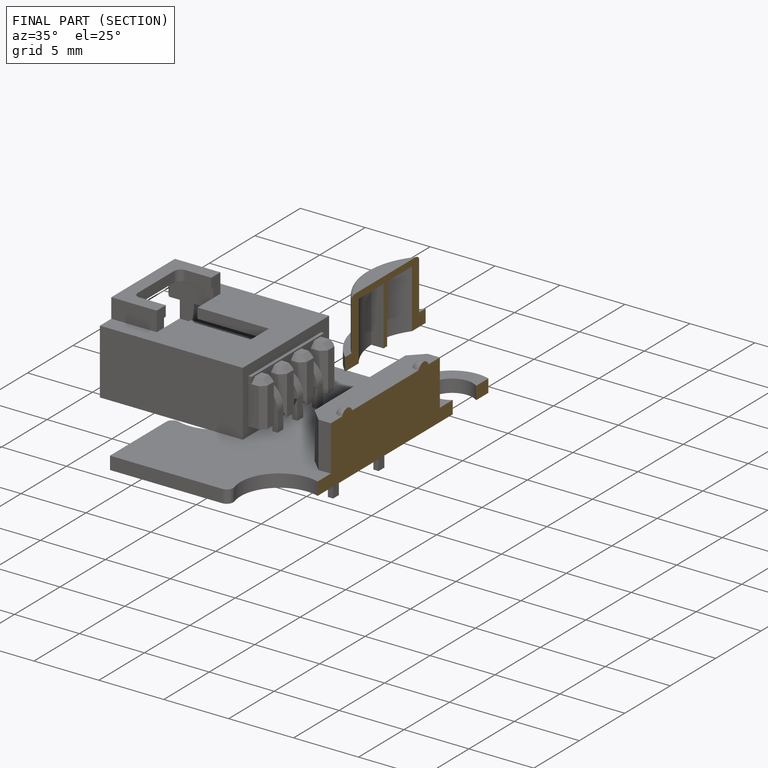
[diagram: finished part — half-section view (interior)]
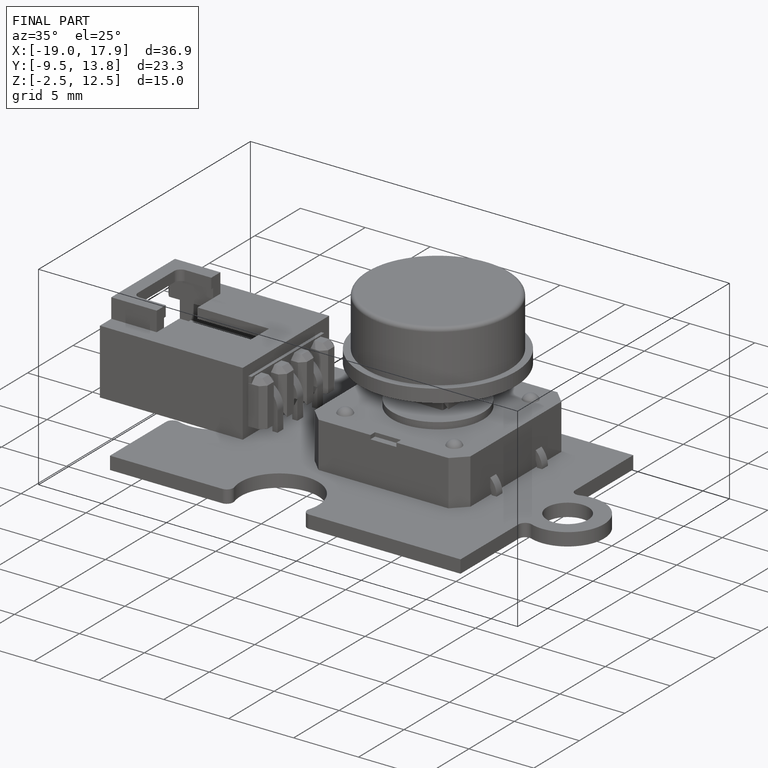
[diagram: finished part — iso view with bounding-box wireframe]
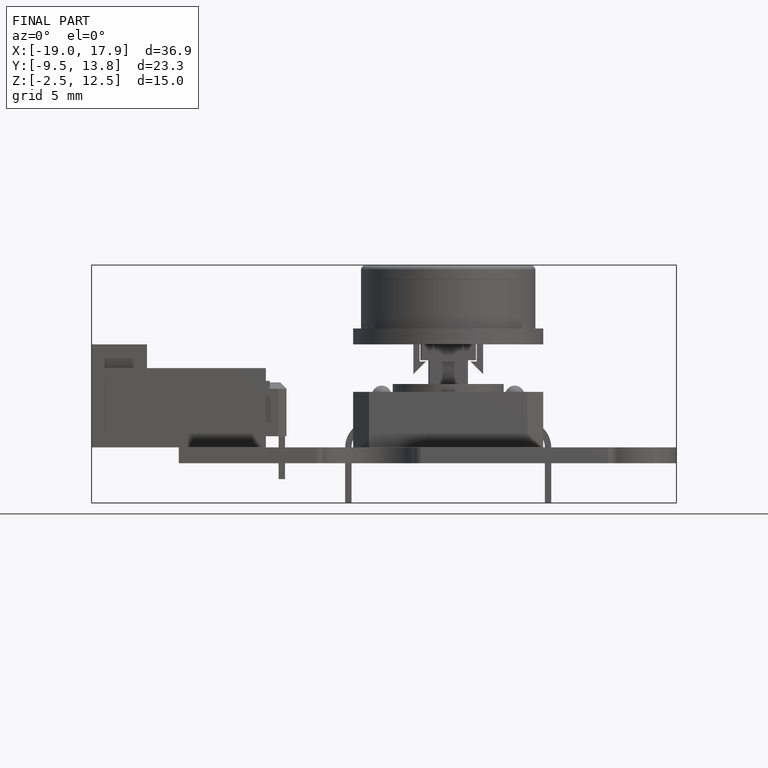
[diagram: finished part — front view with bounding-box wireframe]
